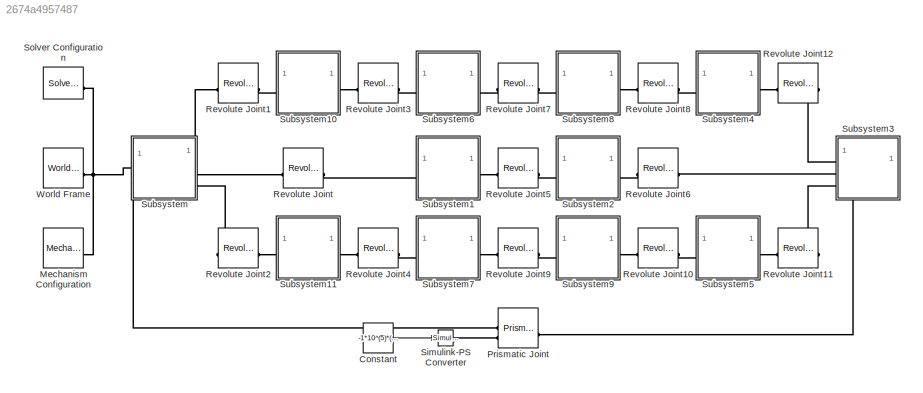
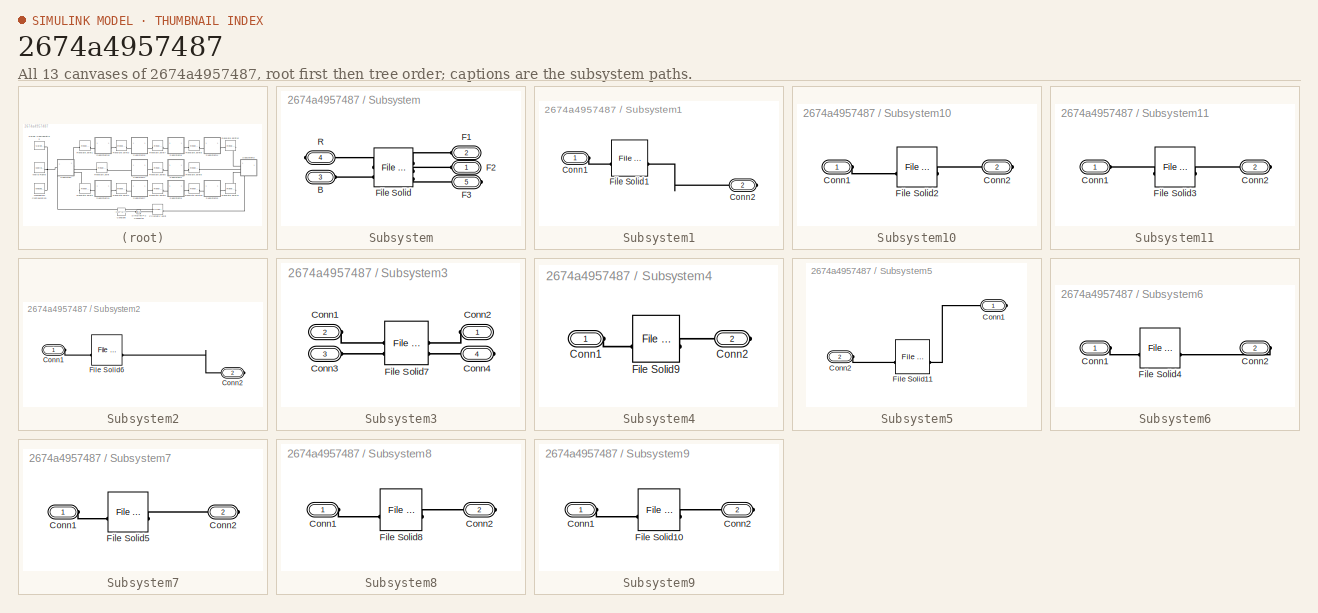
[diagram: thumbnail index - all 13 canvases of the model, root first then tree order]
MODEL slx_2674a4957487
KIND model
CONFIG AbsTol = 1e-3
CONFIG EnableMultiTasking = on
CONFIG FixedStep = auto
CONFIG MaxStep = auto
CONFIG MinStep = auto
CONFIG RelTol = 1e-3
CONFIG SampleTimeConstraint = Unconstrained
CONFIG SolverName = VariableStepAuto
CONFIG StartTime = 0.0
CONFIG StopTime = 3
BLOCK [Constant] Constant
  Value = -1*10^(5)*(pi*0.008^2)/4
BLOCK [Reference] Mechanism Configuration  REF=sm_lib/Utilities/Mechanism
Configuration
  SourceBlock = sm_lib/Utilities/Mechanism\nConfiguration
  SourceType = Mechanism\nConfiguration
BLOCK [Reference] Prismatic Joint  REF=sm_lib/Joints/Prismatic
Joint
  SourceBlock = sm_lib/Joints/Prismatic\nJoint
  SourceType = Prismatic\nJoint
BLOCK [Reference] Revolute Joint  REF=sm_lib/Joints/Revolute Joint
  SourceBlock = sm_lib/Joints/Revolute Joint
  SourceType = Revolute Joint
BLOCK [Reference] Revolute Joint1  REF=sm_lib/Joints/Revolute Joint
  SourceBlock = sm_lib/Joints/Revolute Joint
  SourceType = Revolute Joint
BLOCK [Reference] Revolute Joint10  REF=sm_lib/Joints/Revolute Joint
  SourceBlock = sm_lib/Joints/Revolute Joint
  SourceType = Revolute Joint
BLOCK [Reference] Revolute Joint11  REF=sm_lib/Joints/Revolute Joint
  SourceBlock = sm_lib/Joints/Revolute Joint
  SourceType = Revolute Joint
BLOCK [Reference] Revolute Joint12  REF=sm_lib/Joints/Revolute Joint
  SourceBlock = sm_lib/Joints/Revolute Joint
  SourceType = Revolute Joint
BLOCK [Reference] Revolute Joint2  REF=sm_lib/Joints/Revolute Joint
  SourceBlock = sm_lib/Joints/Revolute Joint
  SourceType = Revolute Joint
BLOCK [Reference] Revolute Joint3  REF=sm_lib/Joints/Revolute Joint
  SourceBlock = sm_lib/Joints/Revolute Joint
  SourceType = Revolute Joint
BLOCK [Reference] Revolute Joint4  REF=sm_lib/Joints/Revolute Joint
  SourceBlock = sm_lib/Joints/Revolute Joint
  SourceType = Revolute Joint
BLOCK [Reference] Revolute Joint5  REF=sm_lib/Joints/Revolute Joint
  SourceBlock = sm_lib/Joints/Revolute Joint
  SourceType = Revolute Joint
BLOCK [Reference] Revolute Joint6  REF=sm_lib/Joints/Revolute Joint
  SourceBlock = sm_lib/Joints/Revolute Joint
  SourceType = Revolute Joint
BLOCK [Reference] Revolute Joint7  REF=sm_lib/Joints/Revolute Joint
  SourceBlock = sm_lib/Joints/Revolute Joint
  SourceType = Revolute Joint
BLOCK [Reference] Revolute Joint8  REF=sm_lib/Joints/Revolute Joint
  SourceBlock = sm_lib/Joints/Revolute Joint
  SourceType = Revolute Joint
BLOCK [Reference] Revolute Joint9  REF=sm_lib/Joints/Revolute Joint
  SourceBlock = sm_lib/Joints/Revolute Joint
  SourceType = Revolute Joint
BLOCK [Reference] Simulink-PS Converter  REF=nesl_utility/Simulink-PS
Converter
  SourceBlock = nesl_utility/Simulink-PS\nConverter
  SourceType = Simulink-PS\nConverter
BLOCK [Reference] Solver Configuration  REF=nesl_utility/Solver
Configuration
  SourceBlock = nesl_utility/Solver\nConfiguration
  SourceType = Solver\nConfiguration
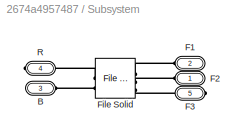
BLOCK [SubSystem] Subsystem
  PortSchema = {"entries":[{"content":{"sides":[{"content":{"connectorIds":["LConn1","LConn2","LConn3"]},"type":"ConnectorPlacement.EquallySpacedRectSide","uuid":"eb2a2f98-1128-4388-97b5-8d7fa023e9f7"},{"content":{"connectorIds":["RConn1"],"side":"RIGHT"},"type":"ConnectorPlacement.EquallySpacedRectSide","uuid":"b5db5936-6203-4182-bc3e-d7fab45cb151"},{"content":{"side":"TOP"},"type":"ConnectorPlacement.EquallySp...<+397ch>
BLOCK [PMIOPort] Subsystem/B
  Port = 3
  Side = Left
BLOCK [PMIOPort] Subsystem/F1
  Port = 2
  Side = Left
BLOCK [PMIOPort] Subsystem/F2
  Side = Left
BLOCK [PMIOPort] Subsystem/F3
  Port = 5
  Side = Right
BLOCK [Reference] Subsystem/File Solid  REF=sm_lib/Body Elements/File Solid
  NameLocation = top
  SourceBlock = sm_lib/Body Elements/File Solid
  SourceType = File Solid
BLOCK [PMIOPort] Subsystem/R
  Port = 4
  Side = Right
BLOCK [SubSystem] Subsystem1
BLOCK [PMIOPort] Subsystem1/Conn1
  Side = Left
BLOCK [PMIOPort] Subsystem1/Conn2
  Port = 2
  Side = Right
BLOCK [Reference] Subsystem1/File Solid1  REF=sm_lib/Body Elements/File Solid
  SourceBlock = sm_lib/Body Elements/File Solid
  SourceType = File Solid
BLOCK [SubSystem] Subsystem10
BLOCK [PMIOPort] Subsystem10/Conn1
  Side = Left
BLOCK [PMIOPort] Subsystem10/Conn2
  Port = 2
  Side = Right
BLOCK [Reference] Subsystem10/File Solid2  REF=sm_lib/Body Elements/File Solid
  SourceBlock = sm_lib/Body Elements/File Solid
  SourceType = File Solid
BLOCK [SubSystem] Subsystem11
BLOCK [PMIOPort] Subsystem11/Conn1
  Side = Left
BLOCK [PMIOPort] Subsystem11/Conn2
  Port = 2
  Side = Right
BLOCK [Reference] Subsystem11/File Solid3  REF=sm_lib/Body Elements/File Solid
  SourceBlock = sm_lib/Body Elements/File Solid
  SourceType = File Solid
BLOCK [SubSystem] Subsystem2
BLOCK [PMIOPort] Subsystem2/Conn1
  Side = Left
BLOCK [PMIOPort] Subsystem2/Conn2
  Port = 2
  Side = Right
BLOCK [Reference] Subsystem2/File Solid6  REF=sm_lib/Body Elements/File Solid
  SourceBlock = sm_lib/Body Elements/File Solid
  SourceType = File Solid
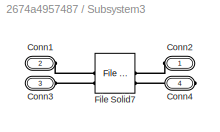
BLOCK [SubSystem] Subsystem3
  PortSchema = {"entries":[{"content":{"sides":[{"content":{"connectorIds":["LConn1","LConn2","LConn3"]},"type":"ConnectorPlacement.EquallySpacedRectSide","uuid":"08a803ce-60bb-4a36-9afc-945ed0d1b19d"},{"content":{"side":"RIGHT"},"type":"ConnectorPlacement.EquallySpacedRectSide","uuid":"d9205745-6b58-425d-b768-ddfe177487d8"},{"content":{"side":"TOP"},"type":"ConnectorPlacement.EquallySpacedRectSide","uuid":"0240...<+371ch>
BLOCK [PMIOPort] Subsystem3/Conn1
  Port = 2
  Side = Left
BLOCK [PMIOPort] Subsystem3/Conn2
  Side = Left
BLOCK [PMIOPort] Subsystem3/Conn3
  Port = 3
  Side = Left
BLOCK [PMIOPort] Subsystem3/Conn4
  Port = 4
  Side = Right
BLOCK [Reference] Subsystem3/File Solid7  REF=sm_lib/Body Elements/File Solid
  SourceBlock = sm_lib/Body Elements/File Solid
  SourceType = File Solid
BLOCK [SubSystem] Subsystem4
BLOCK [PMIOPort] Subsystem4/Conn1
  Side = Left
BLOCK [PMIOPort] Subsystem4/Conn2
  Port = 2
  Side = Right
BLOCK [Reference] Subsystem4/File Solid9  REF=sm_lib/Body Elements/File Solid
  SourceBlock = sm_lib/Body Elements/File Solid
  SourceType = File Solid
BLOCK [SubSystem] Subsystem5
BLOCK [PMIOPort] Subsystem5/Conn1
  Side = Right
BLOCK [PMIOPort] Subsystem5/Conn2
  Port = 2
  Side = Left
BLOCK [Reference] Subsystem5/File Solid11  REF=sm_lib/Body Elements/File Solid
  SourceBlock = sm_lib/Body Elements/File Solid
  SourceType = File Solid
BLOCK [SubSystem] Subsystem6
BLOCK [PMIOPort] Subsystem6/Conn1
  Side = Left
BLOCK [PMIOPort] Subsystem6/Conn2
  Port = 2
  Side = Right
BLOCK [Reference] Subsystem6/File Solid4  REF=sm_lib/Body Elements/File Solid
  SourceBlock = sm_lib/Body Elements/File Solid
  SourceType = File Solid
BLOCK [SubSystem] Subsystem7
BLOCK [PMIOPort] Subsystem7/Conn1
  Side = Left
BLOCK [PMIOPort] Subsystem7/Conn2
  Port = 2
  Side = Right
BLOCK [Reference] Subsystem7/File Solid5  REF=sm_lib/Body Elements/File Solid
  SourceBlock = sm_lib/Body Elements/File Solid
  SourceType = File Solid
BLOCK [SubSystem] Subsystem8
BLOCK [PMIOPort] Subsystem8/Conn1
  Side = Left
BLOCK [PMIOPort] Subsystem8/Conn2
  Port = 2
  Side = Right
BLOCK [Reference] Subsystem8/File Solid8  REF=sm_lib/Body Elements/File Solid
  SourceBlock = sm_lib/Body Elements/File Solid
  SourceType = File Solid
BLOCK [SubSystem] Subsystem9
BLOCK [PMIOPort] Subsystem9/Conn1
  Side = Left
BLOCK [PMIOPort] Subsystem9/Conn2
  Port = 2
  Side = Right
BLOCK [Reference] Subsystem9/File Solid10  REF=sm_lib/Body Elements/File Solid
  SourceBlock = sm_lib/Body Elements/File Solid
  SourceType = File Solid
BLOCK [Reference] World Frame  REF=sm_lib/Frames and
Transforms/World Frame
  SourceBlock = sm_lib/Frames and\nTransforms/World Frame
  SourceType = World Frame
LINE Constant:1 -> Simulink-PS Converter:1
PNET net1: Mechanism Configuration:RConn1 -- Solver Configuration:RConn1 -- Subsystem:RConn1 -- World Frame:RConn1
PLINE Prismatic Joint:LConn1 -- Subsystem:RConn2
PLINE Prismatic Joint:LConn2 -- Simulink-PS Converter:RConn1
PLINE Prismatic Joint:RConn1 -- Subsystem3:RConn1
PLINE Revolute Joint10:LConn1 -- Subsystem9:RConn1
PLINE Revolute Joint10:RConn1 -- Subsystem5:LConn1
PLINE Revolute Joint11:LConn1 -- Subsystem5:RConn1
PLINE Revolute Joint11:RConn1 -- Subsystem3:LConn3
PLINE Revolute Joint12:LConn1 -- Subsystem4:RConn1
PLINE Revolute Joint12:RConn1 -- Subsystem3:LConn1
PLINE Revolute Joint1:LConn1 -- Subsystem:LConn1
PLINE Revolute Joint1:RConn1 -- Subsystem10:LConn1
PLINE Revolute Joint2:LConn1 -- Subsystem:LConn3
PLINE Revolute Joint2:RConn1 -- Subsystem11:LConn1
PLINE Revolute Joint3:LConn1 -- Subsystem10:RConn1
PLINE Revolute Joint3:RConn1 -- Subsystem6:LConn1
PLINE Revolute Joint4:LConn1 -- Subsystem11:RConn1
PLINE Revolute Joint4:RConn1 -- Subsystem7:LConn1
PLINE Revolute Joint5:LConn1 -- Subsystem1:RConn1
PLINE Revolute Joint5:RConn1 -- Subsystem2:LConn1
PLINE Revolute Joint6:LConn1 -- Subsystem2:RConn1
PLINE Revolute Joint6:RConn1 -- Subsystem3:LConn2
PLINE Revolute Joint7:LConn1 -- Subsystem6:RConn1
PLINE Revolute Joint7:RConn1 -- Subsystem8:LConn1
PLINE Revolute Joint8:LConn1 -- Subsystem8:RConn1
PLINE Revolute Joint8:RConn1 -- Subsystem4:LConn1
PLINE Revolute Joint9:LConn1 -- Subsystem7:RConn1
PLINE Revolute Joint9:RConn1 -- Subsystem9:LConn1
PLINE Revolute Joint:LConn1 -- Subsystem:LConn2
PLINE Revolute Joint:RConn1 -- Subsystem1:LConn1
PLINE Subsystem/B:RConn1 -- Subsystem/File Solid:RConn2
PLINE Subsystem/F1:RConn1 -- Subsystem/File Solid:LConn1
PLINE Subsystem/F2:RConn1 -- Subsystem/File Solid:LConn2
PLINE Subsystem/F3:RConn1 -- Subsystem/File Solid:LConn3
PLINE Subsystem/File Solid:RConn1 -- Subsystem/R:RConn1
PLINE Subsystem1/Conn1:RConn1 -- Subsystem1/File Solid1:LConn1
PLINE Subsystem1/Conn2:RConn1 -- Subsystem1/File Solid1:RConn1
PLINE Subsystem10/Conn1:RConn1 -- Subsystem10/File Solid2:LConn1
PLINE Subsystem10/Conn2:RConn1 -- Subsystem10/File Solid2:RConn1
PLINE Subsystem11/Conn1:RConn1 -- Subsystem11/File Solid3:LConn1
PLINE Subsystem11/Conn2:RConn1 -- Subsystem11/File Solid3:RConn1
PLINE Subsystem2/Conn1:RConn1 -- Subsystem2/File Solid6:LConn1
PLINE Subsystem2/Conn2:RConn1 -- Subsystem2/File Solid6:RConn1
PLINE Subsystem3/Conn1:RConn1 -- Subsystem3/File Solid7:LConn1
PLINE Subsystem3/Conn2:RConn1 -- Subsystem3/File Solid7:RConn1
PLINE Subsystem3/Conn3:RConn1 -- Subsystem3/File Solid7:LConn2
PLINE Subsystem3/Conn4:RConn1 -- Subsystem3/File Solid7:RConn2
PLINE Subsystem4/Conn1:RConn1 -- Subsystem4/File Solid9:LConn1
PLINE Subsystem4/Conn2:RConn1 -- Subsystem4/File Solid9:RConn1
PLINE Subsystem5/Conn1:RConn1 -- Subsystem5/File Solid11:RConn1
PLINE Subsystem5/Conn2:RConn1 -- Subsystem5/File Solid11:LConn1
PLINE Subsystem6/Conn1:RConn1 -- Subsystem6/File Solid4:LConn1
PLINE Subsystem6/Conn2:RConn1 -- Subsystem6/File Solid4:RConn1
PLINE Subsystem7/Conn1:RConn1 -- Subsystem7/File Solid5:LConn1
PLINE Subsystem7/Conn2:RConn1 -- Subsystem7/File Solid5:RConn1
PLINE Subsystem8/Conn1:RConn1 -- Subsystem8/File Solid8:LConn1
PLINE Subsystem8/Conn2:RConn1 -- Subsystem8/File Solid8:RConn1
PLINE Subsystem9/Conn1:RConn1 -- Subsystem9/File Solid10:LConn1
PLINE Subsystem9/Conn2:RConn1 -- Subsystem9/File Solid10:RConn1
note: PNET lines group multi-terminal physical nets as a canonical sorted terminal list (undirected conserving connections); 2-terminal nets keep the pairwise PLINE form
